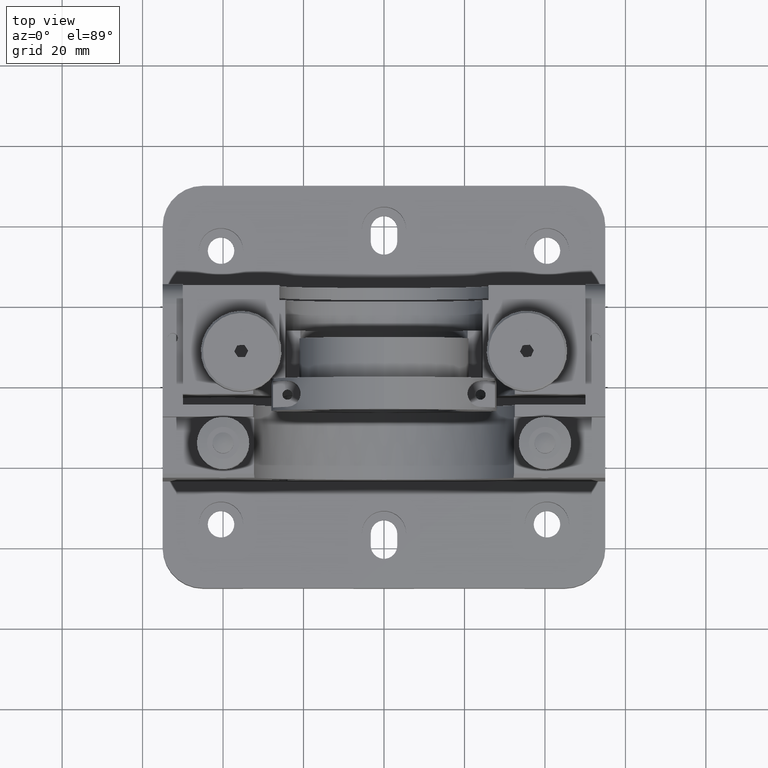
[diagram: clean part render]
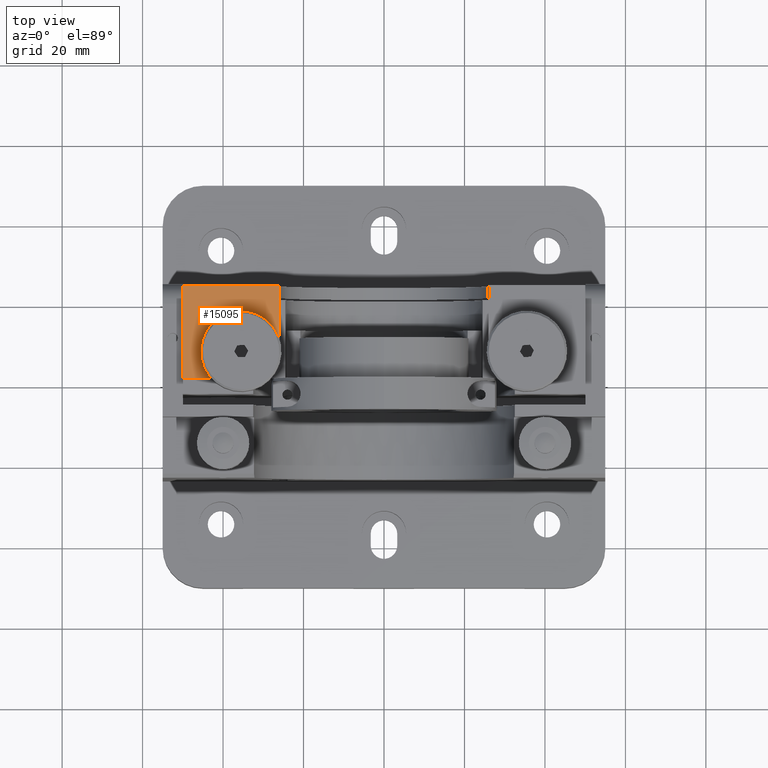
[diagram: same view with one face highlighted and labeled with its STEP entity id]
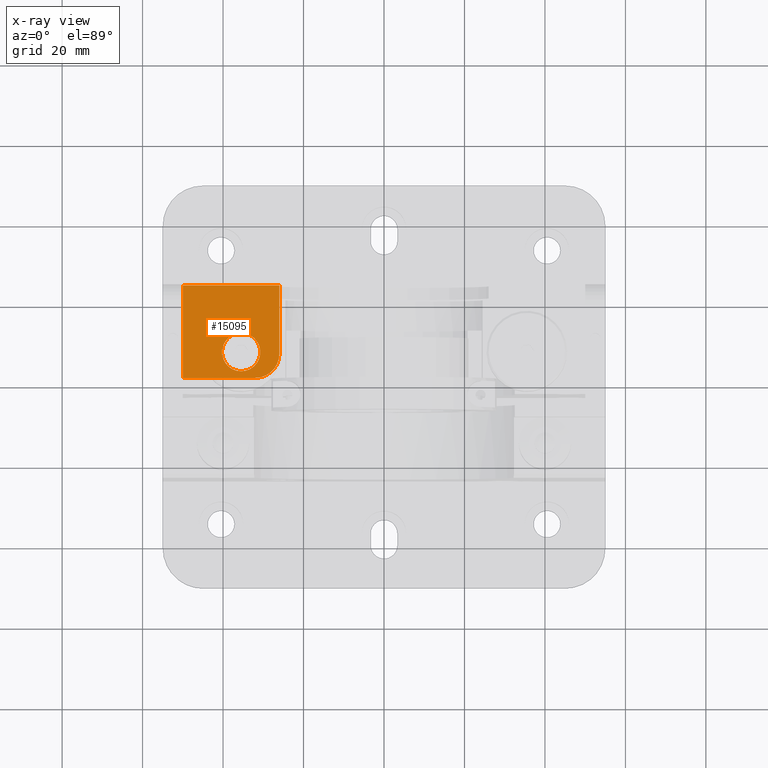
[diagram: x-ray of the same camera — body ghosted, the highlighted face saturated]
A machine part, top view. The second image highlights one B-rep face of the part: STEP entity #15095.
The next image is the same camera in x-ray: the body ghosted, the highlighted face saturated — about 0% of this face is hidden behind the body in this view.
In plain terms, the highlighted planar face has unit normal (0, -0, -1).
Its self-contained STEP definition (entity closure, byte-faithful):
#313 = CARTESIAN_POINT ( 'NONE',  ( 49.99999999999990800, 0.9999999999999956700, -9.389719633909679800 ) ) ;
#350 = EDGE_CURVE ( 'NONE', #14988, #2265, #11337, .T. ) ;
#644 = CARTESIAN_POINT ( 'NONE',  ( -35.50000000000009900, 7.400000000000010100, -9.389719633909727700 ) ) ;
#868 = VERTEX_POINT ( 'NONE', #7468 ) ;
#1062 = CARTESIAN_POINT ( 'NONE',  ( -35.50000000000009900, 12.15000000000000700, -9.389719633909727700 ) ) ;
#1116 = EDGE_CURVE ( 'NONE', #2265, #14988, #11876, .T. ) ;
#1196 = VERTEX_POINT ( 'NONE', #13035 ) ;
#1456 = LINE ( 'NONE', #313, #10242 ) ;
#1779 = DIRECTION ( 'NONE',  ( 0.0000000000000000000, 1.000000000000000000, 0.0000000000000000000 ) ) ;
#1808 = AXIS2_PLACEMENT_3D ( 'NONE', #12832, #7849, #4253 ) ;
#1867 = VERTEX_POINT ( 'NONE', #3965 ) ;
#2265 = VERTEX_POINT ( 'NONE', #1062 ) ;
#2425 = DIRECTION ( 'NONE',  ( -5.596392775671702100E-016, 4.163336342344337000E-017, 1.000000000000000000 ) ) ;
#2488 = VECTOR ( 'NONE', #15030, 1000.000000000000000 ) ;
#2692 = AXIS2_PLACEMENT_3D ( 'NONE', #9940, #14817, #14708 ) ;
#3454 = LINE ( 'NONE', #13714, #2488 ) ;
#3525 = CARTESIAN_POINT ( 'NONE',  ( -26.00000000000008500, 24.00000000000000700, -9.389719633909706400 ) ) ;
#3598 = VERTEX_POINT ( 'NONE', #14283 ) ;
#3793 = DIRECTION ( 'NONE',  ( 0.0000000000000000000, -1.000000000000000000, 0.0000000000000000000 ) ) ;
#3857 = ORIENTED_EDGE ( 'NONE', *, *, #11297, .T. ) ;
#3965 = CARTESIAN_POINT ( 'NONE',  ( -50.00000000000009900, 1.000000000000013100, -9.389719633909734900 ) ) ;
#4162 = DIRECTION ( 'NONE',  ( -1.750990936956636500E-016, -1.000000000000000000, 4.163336342344337000E-017 ) ) ;
#4203 = VECTOR ( 'NONE', #7274, 1000.000000000000000 ) ;
#4253 = DIRECTION ( 'NONE',  ( 0.0000000000000000000, 1.000000000000000000, 0.0000000000000000000 ) ) ;
#4422 = EDGE_LOOP ( 'NONE', ( #11455, #3857, #5173, #8540, #13705 ) ) ;
#4786 = CARTESIAN_POINT ( 'NONE',  ( 49.99999999999990800, 23.99999999999999300, -9.389719633909679800 ) ) ;
#4911 = CARTESIAN_POINT ( 'NONE',  ( -32.00000000000008500, 7.000000000000009800, -9.389719633909724200 ) ) ;
#5173 = ORIENTED_EDGE ( 'NONE', *, *, #14401, .T. ) ;
#5754 = FACE_BOUND ( 'NONE', #6675, .T. ) ;
#6675 = EDGE_LOOP ( 'NONE', ( #14439, #12348 ) ) ;
#6745 = CIRCLE ( 'NONE', #11731, 6.000000000000000000 ) ;
#7036 = CARTESIAN_POINT ( 'NONE',  ( -35.50000000000009900, 2.650000000000011900, -9.389719633909727700 ) ) ;
#7274 = DIRECTION ( 'NONE',  ( 1.000000000000000000, -1.750990936956637400E-016, 5.596392775671703100E-016 ) ) ;
#7468 = CARTESIAN_POINT ( 'NONE',  ( -26.00000000000008200, 7.000000000000007100, -9.389719633909720600 ) ) ;
#7849 = DIRECTION ( 'NONE',  ( -5.596392775671707100E-016, 3.469446951953615400E-017, 1.000000000000000000 ) ) ;
#8075 = AXIS2_PLACEMENT_3D ( 'NONE', #644, #10671, #1779 ) ;
#8540 = ORIENTED_EDGE ( 'NONE', *, *, #11552, .F. ) ;
#8682 = PLANE ( 'NONE',  #2692 ) ;
#9707 = LINE ( 'NONE', #11546, #15877 ) ;
#9940 = CARTESIAN_POINT ( 'NONE',  ( 49.99999999999990800, 23.99999999999999300, -9.389719633909679800 ) ) ;
#10228 = DIRECTION ( 'NONE',  ( 1.000000000000000000, -1.750990936956637400E-016, 5.596392775671703100E-016 ) ) ;
#10242 = VECTOR ( 'NONE', #10228, 1000.000000000000000 ) ;
#10671 = DIRECTION ( 'NONE',  ( -5.596392775671707100E-016, 3.469446951953615400E-017, 1.000000000000000000 ) ) ;
#11297 = EDGE_CURVE ( 'NONE', #3598, #868, #6745, .T. ) ;
#11337 = CIRCLE ( 'NONE', #8075, 4.749999999999998200 ) ;
#11408 = EDGE_CURVE ( 'NONE', #1867, #3598, #1456, .T. ) ;
#11455 = ORIENTED_EDGE ( 'NONE', *, *, #11408, .T. ) ;
#11546 = CARTESIAN_POINT ( 'NONE',  ( -50.00000000000009900, 24.00000000000001400, -9.389719633909734900 ) ) ;
#11552 = EDGE_CURVE ( 'NONE', #1196, #12434, #14698, .T. ) ;
#11731 = AXIS2_PLACEMENT_3D ( 'NONE', #4911, #2425, #3793 ) ;
#11876 = CIRCLE ( 'NONE', #1808, 4.749999999999998200 ) ;
#12348 = ORIENTED_EDGE ( 'NONE', *, *, #350, .F. ) ;
#12434 = VERTEX_POINT ( 'NONE', #3525 ) ;
#12762 = FACE_OUTER_BOUND ( 'NONE', #4422, .T. ) ;
#12832 = CARTESIAN_POINT ( 'NONE',  ( -35.50000000000009900, 7.400000000000010100, -9.389719633909727700 ) ) ;
#13035 = CARTESIAN_POINT ( 'NONE',  ( -50.00000000000009900, 24.00000000000001400, -9.389719633909734900 ) ) ;
#13705 = ORIENTED_EDGE ( 'NONE', *, *, #14565, .T. ) ;
#13714 = CARTESIAN_POINT ( 'NONE',  ( -26.00000000000007800, 24.00000000000000700, -9.389719633909720600 ) ) ;
#14283 = CARTESIAN_POINT ( 'NONE',  ( -32.00000000000008500, 1.000000000000009500, -9.389719633909724200 ) ) ;
#14401 = EDGE_CURVE ( 'NONE', #868, #12434, #3454, .T. ) ;
#14439 = ORIENTED_EDGE ( 'NONE', *, *, #1116, .F. ) ;
#14565 = EDGE_CURVE ( 'NONE', #1196, #1867, #9707, .T. ) ;
#14698 = LINE ( 'NONE', #4786, #4203 ) ;
#14708 = DIRECTION ( 'NONE',  ( -1.750990936956636500E-016, -1.000000000000000000, 4.163336342344337000E-017 ) ) ;
#14817 = DIRECTION ( 'NONE',  ( 5.596392775671702100E-016, -4.163336342344346900E-017, -1.000000000000000000 ) ) ;
#14988 = VERTEX_POINT ( 'NONE', #7036 ) ;
#15030 = DIRECTION ( 'NONE',  ( 1.750990936956636500E-016, 1.000000000000000000, -4.163336342344337000E-017 ) ) ;
#15095 = ADVANCED_FACE ( 'NONE', ( #5754, #12762 ), #8682, .F. ) ;
#15877 = VECTOR ( 'NONE', #4162, 1000.000000000000000 ) ;